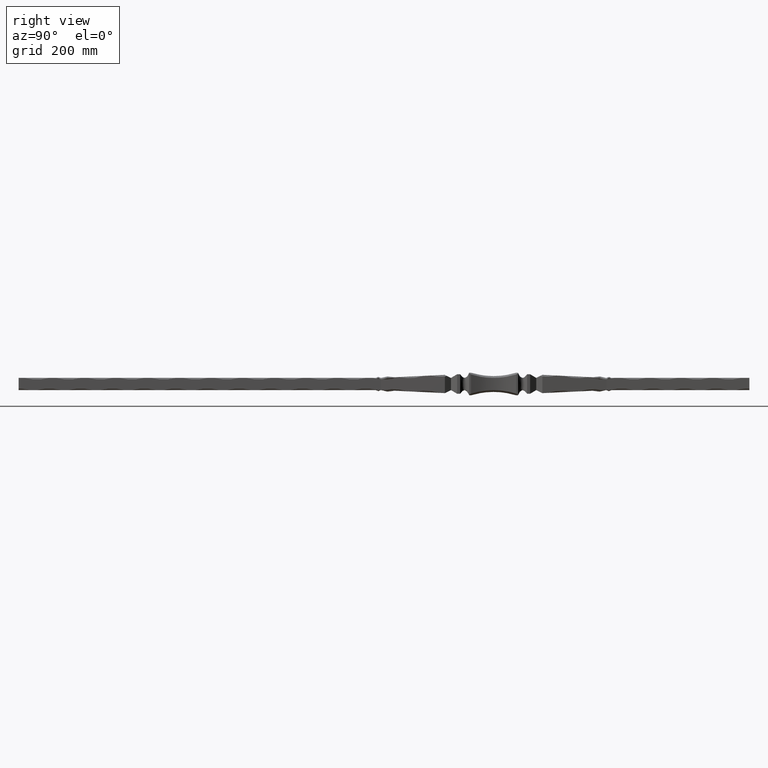
[diagram: clean part render]
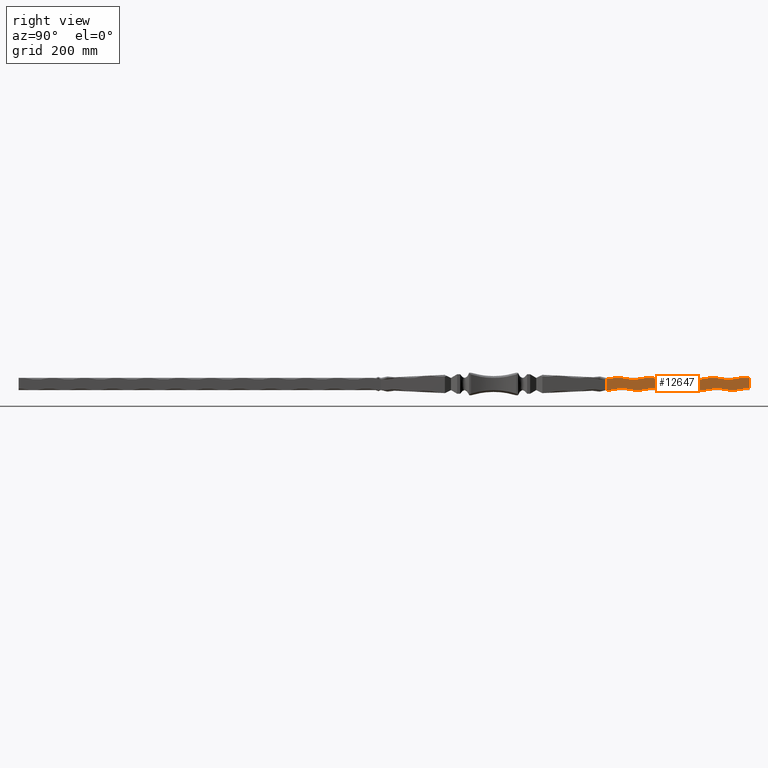
[diagram: same view with one face highlighted and labeled with its STEP entity id]
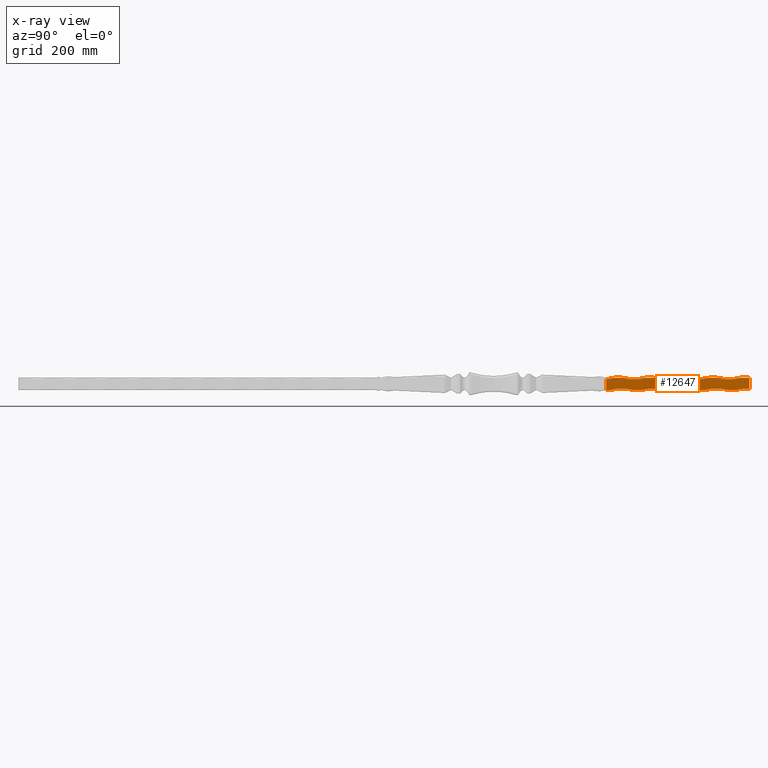
[diagram: x-ray of the same camera — body ghosted, the highlighted face saturated]
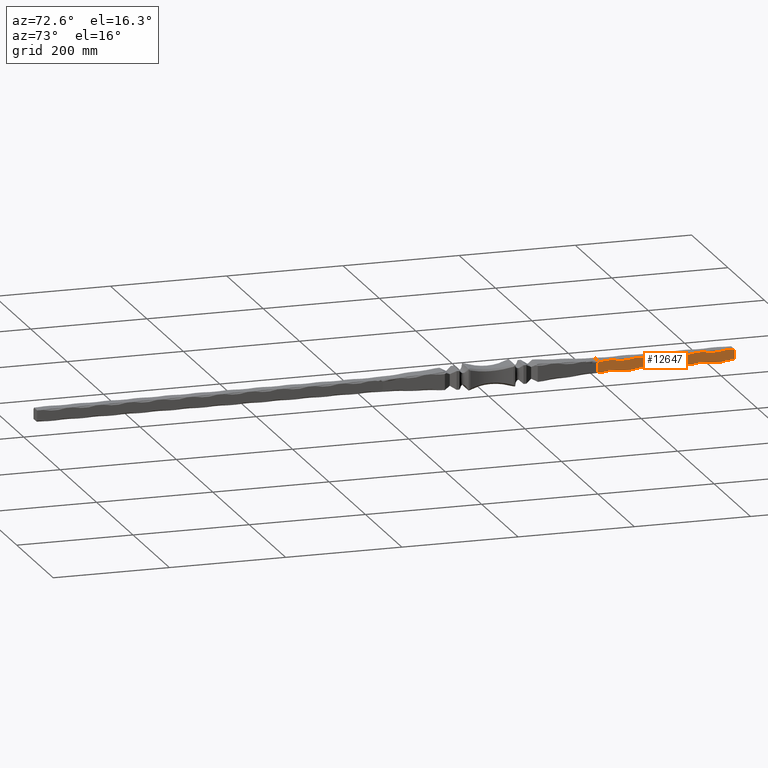
[diagram: same view with one face highlighted and labeled with its STEP entity id]
A machine part, right view. The second image highlights one B-rep face of the part: STEP entity #12647.
The next image is the same camera in x-ray: the body ghosted, the highlighted face saturated — about 0% of this face is hidden behind the body in this view.
A second angle (auxiliary view) of the same face is appended — the face is thin or edge-on in the first view.
In plain terms, the highlighted planar face has unit normal (-1, 0, 0).
Its self-contained STEP definition (entity closure, byte-faithful):
#166 = CARTESIAN_POINT ( 'NONE',  ( 10.00000000000027889, 282.0000000000000000, 88.74999999999927525 ) ) ;
#328 = VERTEX_POINT ( 'NONE', #6523 ) ;
#378 = ORIENTED_EDGE ( 'NONE', *, *, #986, .F. ) ;
#389 = LINE ( 'NONE', #2151, #588 ) ;
#550 = CARTESIAN_POINT ( 'NONE',  ( 10.00000000000024336, 354.0000000000000568, 9.999999999999221956 ) ) ;
#588 = VECTOR ( 'NONE', #8401, 1000.000000000000000 ) ;
#679 = AXIS2_PLACEMENT_3D ( 'NONE', #6060, #14835, #8616 ) ;
#804 = VECTOR ( 'NONE', #13164, 1000.000000000000000 ) ;
#864 = EDGE_CURVE ( 'NONE', #4898, #14855, #389, .T. ) ;
#958 = LINE ( 'NONE', #13800, #11564 ) ;
#981 = CIRCLE ( 'NONE', #10116, 81.25000000000014211 ) ;
#986 = EDGE_CURVE ( 'NONE', #3623, #9154, #958, .T. ) ;
#1055 = VECTOR ( 'NONE', #6539, 1000.000000000000000 ) ;
#1118 = CARTESIAN_POINT ( 'NONE',  ( 10.00000000000000178, 868.2842712474619020, 10.00000000000000355 ) ) ;
#1139 = LINE ( 'NONE', #5008, #5456 ) ;
#1310 = EDGE_CURVE ( 'NONE', #6690, #12033, #10575, .T. ) ;
#1437 = DIRECTION ( 'NONE',  ( -0.000000000000000000, -1.000000000000000000, -0.000000000000000000 ) ) ;
#1635 = DIRECTION ( 'NONE',  ( 0.000000000000000000, 0.000000000000000000, 1.000000000000000000 ) ) ;
#1800 = ORIENTED_EDGE ( 'NONE', *, *, #14357, .T. ) ;
#1819 = CARTESIAN_POINT ( 'NONE',  ( 10.00000000000021139, 406.0000000000000000, 9.999999999999319655 ) ) ;
#1971 = ORIENTED_EDGE ( 'NONE', *, *, #8077, .T. ) ;
#1988 = ORIENTED_EDGE ( 'NONE', *, *, #13579, .T. ) ;
#2125 = CARTESIAN_POINT ( 'NONE',  ( 10.00000000000000178, 397.9999999999999432, -10.00000000000071765 ) ) ;
#2151 = CARTESIAN_POINT ( 'NONE',  ( 10.00000000000000178, 868.2842712474619020, -9.999999999999996447 ) ) ;
#2169 = DIRECTION ( 'NONE',  ( -1.000000000000000000, 0.000000000000000000, 0.000000000000000000 ) ) ;
#2402 = AXIS2_PLACEMENT_3D ( 'NONE', #14638, #12239, #14800 ) ;
#2419 = VERTEX_POINT ( 'NONE', #10529 ) ;
#2672 = AXIS2_PLACEMENT_3D ( 'NONE', #7772, #7884, #1635 ) ;
#2724 = AXIS2_PLACEMENT_3D ( 'NONE', #3484, #12290, #7181 ) ;
#2862 = DIRECTION ( 'NONE',  ( -0.000000000000000000, -1.000000000000000000, -0.000000000000000000 ) ) ;
#3006 = ORIENTED_EDGE ( 'NONE', *, *, #3137, .F. ) ;
#3137 = EDGE_CURVE ( 'NONE', #13549, #14918, #4293, .T. ) ;
#3359 = CARTESIAN_POINT ( 'NONE',  ( 10.00000000000000178, 185.0000000000000000, -9.999999999999996447 ) ) ;
#3428 = EDGE_CURVE ( 'NONE', #328, #14985, #13679, .T. ) ;
#3484 = CARTESIAN_POINT ( 'NONE',  ( 10.00000000000000178, 314.0000000000000000, -88.75000000000110845 ) ) ;
#3492 = ORIENTED_EDGE ( 'NONE', *, *, #11234, .T. ) ;
#3544 = CARTESIAN_POINT ( 'NONE',  ( 10.00000000000030909, 229.9999999999999716, 88.74999999999917577 ) ) ;
#3612 = DIRECTION ( 'NONE',  ( -1.000000000000000000, 0.000000000000000000, 0.000000000000000000 ) ) ;
#3623 = VERTEX_POINT ( 'NONE', #12695 ) ;
#3628 = DIRECTION ( 'NONE',  ( -1.000000000000000000, 0.000000000000000000, 0.000000000000000000 ) ) ;
#3705 = DIRECTION ( 'NONE',  ( 0.000000000000000000, 0.000000000000000000, 1.000000000000000000 ) ) ;
#3729 = CARTESIAN_POINT ( 'NONE',  ( 10.00000000000000178, 868.2842712474619020, -9.999999999999996447 ) ) ;
#3932 = DIRECTION ( 'NONE',  ( 0.000000000000000000, 0.000000000000000000, 1.000000000000000000 ) ) ;
#4042 = CIRCLE ( 'NONE', #2724, 81.25000000000014211 ) ;
#4080 = CARTESIAN_POINT ( 'NONE',  ( 10.00000000000027178, 302.0000000000000568, 9.999999999999124256 ) ) ;
#4293 = LINE ( 'NONE', #10595, #15259 ) ;
#4351 = CARTESIAN_POINT ( 'NONE',  ( 10.00000000000000178, 868.2842712474619020, -9.999999999999996447 ) ) ;
#4420 = ORIENTED_EDGE ( 'NONE', *, *, #10755, .T. ) ;
#4553 = CIRCLE ( 'NONE', #7818, 81.25000000000014211 ) ;
#4558 = CARTESIAN_POINT ( 'NONE',  ( 10.00000000000000178, 366.0000000000000000, -88.75000000000098055 ) ) ;
#4610 = VERTEX_POINT ( 'NONE', #550 ) ;
#4772 = ORIENTED_EDGE ( 'NONE', *, *, #15142, .T. ) ;
#4887 = ORIENTED_EDGE ( 'NONE', *, *, #11820, .T. ) ;
#4898 = VERTEX_POINT ( 'NONE', #15782 ) ;
#5008 = CARTESIAN_POINT ( 'NONE',  ( 10.00000000000000178, 868.2842712474619020, 10.00000000000000355 ) ) ;
#5053 = AXIS2_PLACEMENT_3D ( 'NONE', #9467, #5695, #11953 ) ;
#5131 = CARTESIAN_POINT ( 'NONE',  ( 10.00000000000030909, 209.9999999999960778, 10.00000000000000888 ) ) ;
#5231 = CIRCLE ( 'NONE', #2402, 81.25000000000015632 ) ;
#5456 = VECTOR ( 'NONE', #1437, 1000.000000000000000 ) ;
#5509 = VERTEX_POINT ( 'NONE', #5131 ) ;
#5695 = DIRECTION ( 'NONE',  ( -1.000000000000000000, 0.000000000000000000, 0.000000000000000000 ) ) ;
#5786 = VERTEX_POINT ( 'NONE', #9238 ) ;
#5887 = LINE ( 'NONE', #8210, #804 ) ;
#6060 = CARTESIAN_POINT ( 'NONE',  ( 10.00000000000034106, 178.0000000000000568, 88.74999999999907629 ) ) ;
#6166 = ORIENTED_EDGE ( 'NONE', *, *, #3428, .T. ) ;
#6189 = DIRECTION ( 'NONE',  ( -1.000000000000000000, 0.000000000000000000, 0.000000000000000000 ) ) ;
#6328 = AXIS2_PLACEMENT_3D ( 'NONE', #8445, #8763, #8820 ) ;
#6338 = LINE ( 'NONE', #4351, #14963 ) ;
#6371 = ORIENTED_EDGE ( 'NONE', *, *, #13606, .T. ) ;
#6523 = CARTESIAN_POINT ( 'NONE',  ( 10.00000000000000178, 420.0000000000000000, 9.518929705575141398 ) ) ;
#6539 = DIRECTION ( 'NONE',  ( 0.000000000000000000, 0.000000000000000000, -1.000000000000000000 ) ) ;
#6594 = AXIS2_PLACEMENT_3D ( 'NONE', #3544, #6189, #3705 ) ;
#6690 = VERTEX_POINT ( 'NONE', #2125 ) ;
#6748 = CARTESIAN_POINT ( 'NONE',  ( 10.00000000000000178, 229.9999999999999716, -10.00000000000119904 ) ) ;
#6763 = ORIENTED_EDGE ( 'NONE', *, *, #1310, .T. ) ;
#6867 = DIRECTION ( 'NONE',  ( 0.000000000000000000, 0.000000000000000000, 1.000000000000000000 ) ) ;
#6919 = VERTEX_POINT ( 'NONE', #15633 ) ;
#6964 = CARTESIAN_POINT ( 'NONE',  ( 10.00000000000000178, 420.0000000000000000, -7.524619114467156145 ) ) ;
#7181 = DIRECTION ( 'NONE',  ( 0.000000000000000000, 0.000000000000000000, 1.000000000000000000 ) ) ;
#7671 = EDGE_CURVE ( 'NONE', #328, #12033, #13203, .T. ) ;
#7772 = CARTESIAN_POINT ( 'NONE',  ( 10.00000000000000178, 418.0000000000000000, -88.75000000000085265 ) ) ;
#7818 = AXIS2_PLACEMENT_3D ( 'NONE', #15747, #10796, #8292 ) ;
#7884 = DIRECTION ( 'NONE',  ( -1.000000000000000000, 0.000000000000000000, 0.000000000000000000 ) ) ;
#7952 = CARTESIAN_POINT ( 'NONE',  ( 10.00000000000000178, 209.9999999999999716, -88.75000000000133582 ) ) ;
#8031 = DIRECTION ( 'NONE',  ( -0.000000000000000000, -1.000000000000000000, -0.000000000000000000 ) ) ;
#8077 = EDGE_CURVE ( 'NONE', #4610, #12845, #15358, .T. ) ;
#8136 = VERTEX_POINT ( 'NONE', #8260 ) ;
#8210 = CARTESIAN_POINT ( 'NONE',  ( 10.00000000000000178, 868.2842712474619020, 10.00000000000000355 ) ) ;
#8260 = CARTESIAN_POINT ( 'NONE',  ( 10.00000000000030198, 250.0000000000000000, 9.999999999999026556 ) ) ;
#8292 = DIRECTION ( 'NONE',  ( 0.000000000000000000, 0.000000000000000000, 1.000000000000000000 ) ) ;
#8325 = ORIENTED_EDGE ( 'NONE', *, *, #15422, .T. ) ;
#8329 = DIRECTION ( 'NONE',  ( -1.000000000000000000, 0.000000000000000000, 0.000000000000000000 ) ) ;
#8339 = CARTESIAN_POINT ( 'NONE',  ( 10.00000000000000178, 282.0000000000000000, -10.00000000000108002 ) ) ;
#8401 = DIRECTION ( 'NONE',  ( -0.000000000000000000, -1.000000000000000000, -0.000000000000000000 ) ) ;
#8445 = CARTESIAN_POINT ( 'NONE',  ( 10.00000000000019007, 438.0000000000000000, 88.74999999999955946 ) ) ;
#8475 = ORIENTED_EDGE ( 'NONE', *, *, #7671, .F. ) ;
#8552 = EDGE_CURVE ( 'NONE', #6690, #6919, #6338, .T. ) ;
#8616 = DIRECTION ( 'NONE',  ( 0.000000000000000000, 0.000000000000000000, 1.000000000000000000 ) ) ;
#8698 = EDGE_CURVE ( 'NONE', #3623, #14855, #4553, .T. ) ;
#8763 = DIRECTION ( 'NONE',  ( -1.000000000000000000, 0.000000000000000000, 0.000000000000000000 ) ) ;
#8820 = DIRECTION ( 'NONE',  ( 0.000000000000000000, 0.000000000000000000, 1.000000000000000000 ) ) ;
#8864 = VERTEX_POINT ( 'NONE', #11224 ) ;
#8937 = DIRECTION ( 'NONE',  ( 0.000000000000000000, 0.000000000000000000, 1.000000000000000000 ) ) ;
#8995 = DIRECTION ( 'NONE',  ( -0.000000000000000000, -1.000000000000000000, -0.000000000000000000 ) ) ;
#9115 = ORIENTED_EDGE ( 'NONE', *, *, #11704, .T. ) ;
#9154 = VERTEX_POINT ( 'NONE', #6748 ) ;
#9164 = CARTESIAN_POINT ( 'NONE',  ( 10.00000000000000178, 334.0000000000000000, -10.00000000000095923 ) ) ;
#9238 = CARTESIAN_POINT ( 'NONE',  ( 10.00000000000027889, 261.9999999999965326, 10.00000000000000888 ) ) ;
#9467 = CARTESIAN_POINT ( 'NONE',  ( 10.00000000000025047, 334.0000000000000000, 88.74999999999937472 ) ) ;
#9733 = DIRECTION ( 'NONE',  ( -0.000000000000000000, -1.000000000000000000, -0.000000000000000000 ) ) ;
#9849 = CARTESIAN_POINT ( 'NONE',  ( 10.00000000000000178, 868.2842712474619020, 10.00000000000000355 ) ) ;
#9944 = VECTOR ( 'NONE', #15410, 1000.000000000000000 ) ;
#9960 = LINE ( 'NONE', #15454, #14050 ) ;
#10074 = CARTESIAN_POINT ( 'NONE',  ( 10.00000000000033396, 198.0000000000000568, 9.999999999998928857 ) ) ;
#10116 = AXIS2_PLACEMENT_3D ( 'NONE', #4558, #8329, #6867 ) ;
#10407 = ORIENTED_EDGE ( 'NONE', *, *, #8552, .F. ) ;
#10465 = CARTESIAN_POINT ( 'NONE',  ( 10.00000000000025047, 313.9999999999968736, 10.00000000000000888 ) ) ;
#10529 = CARTESIAN_POINT ( 'NONE',  ( 10.00000000000000178, 185.0000000000000568, 7.802100089006799521 ) ) ;
#10566 = ORIENTED_EDGE ( 'NONE', *, *, #15612, .T. ) ;
#10575 = CIRCLE ( 'NONE', #2672, 81.25000000000014211 ) ;
#10595 = CARTESIAN_POINT ( 'NONE',  ( 10.00000000000000178, 868.2842712474619020, -9.999999999999996447 ) ) ;
#10737 = VECTOR ( 'NONE', #8031, 1000.000000000000000 ) ;
#10755 = EDGE_CURVE ( 'NONE', #14995, #2419, #12196, .T. ) ;
#10796 = DIRECTION ( 'NONE',  ( -1.000000000000000000, 0.000000000000000000, 0.000000000000000000 ) ) ;
#11011 = ORIENTED_EDGE ( 'NONE', *, *, #12737, .T. ) ;
#11120 = LINE ( 'NONE', #3729, #9944 ) ;
#11129 = ORIENTED_EDGE ( 'NONE', *, *, #8698, .T. ) ;
#11224 = CARTESIAN_POINT ( 'NONE',  ( 10.00000000000000888, 346.0000000000000568, -10.00000000000083844 ) ) ;
#11234 = EDGE_CURVE ( 'NONE', #5509, #14995, #5887, .T. ) ;
#11346 = DIRECTION ( 'NONE',  ( -0.000000000000000000, -1.000000000000000000, -0.000000000000000000 ) ) ;
#11428 = CARTESIAN_POINT ( 'NONE',  ( 10.00000000000000178, 185.0000000000000000, -9.999999999999996447 ) ) ;
#11463 = VERTEX_POINT ( 'NONE', #4080 ) ;
#11564 = VECTOR ( 'NONE', #11346, 1000.000000000000000 ) ;
#11570 = VERTEX_POINT ( 'NONE', #9164 ) ;
#11702 = CIRCLE ( 'NONE', #6594, 81.25000000000014211 ) ;
#11704 = EDGE_CURVE ( 'NONE', #8864, #6919, #981, .T. ) ;
#11820 = EDGE_CURVE ( 'NONE', #11463, #5786, #15671, .T. ) ;
#11843 = EDGE_LOOP ( 'NONE', ( #3492, #4420, #8325, #3006, #6371, #378, #11129, #13822, #15678, #13267, #9115, #10407, #6763, #8475, #6166, #10566, #1800, #4772, #1971, #11011, #4887, #1988, #12208 ) ) ;
#11953 = DIRECTION ( 'NONE',  ( 0.000000000000000000, 0.000000000000000000, 1.000000000000000000 ) ) ;
#12033 = VERTEX_POINT ( 'NONE', #6964 ) ;
#12168 = FACE_OUTER_BOUND ( 'NONE', #11843, .T. ) ;
#12196 = CIRCLE ( 'NONE', #679, 81.25000000000015632 ) ;
#12208 = ORIENTED_EDGE ( 'NONE', *, *, #15286, .T. ) ;
#12239 = DIRECTION ( 'NONE',  ( -1.000000000000000000, 0.000000000000000000, 0.000000000000000000 ) ) ;
#12290 = DIRECTION ( 'NONE',  ( -1.000000000000000000, 0.000000000000000000, 0.000000000000000000 ) ) ;
#12346 = LINE ( 'NONE', #9849, #16028 ) ;
#12477 = VERTEX_POINT ( 'NONE', #1819 ) ;
#12563 = CARTESIAN_POINT ( 'NONE',  ( 10.00000000000000888, 189.9999999999999716, -10.00000000000119904 ) ) ;
#12619 = DIRECTION ( 'NONE',  ( -0.000000000000000000, -0.000000000000000000, -1.000000000000000000 ) ) ;
#12647 = ADVANCED_FACE ( 'NONE', ( #12168 ), #14886, .F. ) ;
#12684 = VECTOR ( 'NONE', #12619, 1000.000000000000000 ) ;
#12695 = CARTESIAN_POINT ( 'NONE',  ( 10.00000000000000888, 242.0000000000000284, -10.00000000000108002 ) ) ;
#12697 = CARTESIAN_POINT ( 'NONE',  ( 10.00000000000021849, 365.9999999999972715, 10.00000000000000888 ) ) ;
#12737 = EDGE_CURVE ( 'NONE', #12845, #11463, #1139, .T. ) ;
#12845 = VERTEX_POINT ( 'NONE', #10465 ) ;
#13045 = CARTESIAN_POINT ( 'NONE',  ( 10.00000000000000178, 868.2842712474619020, 10.00000000000000355 ) ) ;
#13164 = DIRECTION ( 'NONE',  ( -0.000000000000000000, -1.000000000000000000, -0.000000000000000000 ) ) ;
#13199 = DIRECTION ( 'NONE',  ( -0.000000000000000000, -1.000000000000000000, -0.000000000000000000 ) ) ;
#13203 = LINE ( 'NONE', #14215, #1055 ) ;
#13267 = ORIENTED_EDGE ( 'NONE', *, *, #16021, .F. ) ;
#13469 = LINE ( 'NONE', #13045, #10737 ) ;
#13549 = VERTEX_POINT ( 'NONE', #12563 ) ;
#13579 = EDGE_CURVE ( 'NONE', #5786, #8136, #12346, .T. ) ;
#13606 = EDGE_CURVE ( 'NONE', #13549, #9154, #14676, .T. ) ;
#13608 = VERTEX_POINT ( 'NONE', #12697 ) ;
#13679 = CIRCLE ( 'NONE', #6328, 81.25000000000014211 ) ;
#13696 = DIRECTION ( 'NONE',  ( 0.000000000000000000, 0.000000000000000000, 1.000000000000000000 ) ) ;
#13800 = CARTESIAN_POINT ( 'NONE',  ( 10.00000000000000178, 868.2842712474619020, -9.999999999999996447 ) ) ;
#13822 = ORIENTED_EDGE ( 'NONE', *, *, #864, .F. ) ;
#13952 = CARTESIAN_POINT ( 'NONE',  ( 10.00000000000018296, 418.0000000000000000, 9.999999999999417355 ) ) ;
#14050 = VECTOR ( 'NONE', #8995, 1000.000000000000000 ) ;
#14215 = CARTESIAN_POINT ( 'NONE',  ( 10.00000000000000178, 420.0000000000000000, 10.00000000000000355 ) ) ;
#14357 = EDGE_CURVE ( 'NONE', #12477, #13608, #5231, .T. ) ;
#14399 = EDGE_CURVE ( 'NONE', #4898, #11570, #4042, .T. ) ;
#14638 = CARTESIAN_POINT ( 'NONE',  ( 10.00000000000021849, 386.0000000000000000, 88.74999999999947420 ) ) ;
#14676 = CIRCLE ( 'NONE', #15623, 81.25000000000014211 ) ;
#14800 = DIRECTION ( 'NONE',  ( 0.000000000000000000, 0.000000000000000000, 1.000000000000000000 ) ) ;
#14835 = DIRECTION ( 'NONE',  ( -1.000000000000000000, 0.000000000000000000, 0.000000000000000000 ) ) ;
#14855 = VERTEX_POINT ( 'NONE', #8339 ) ;
#14886 = PLANE ( 'NONE',  #15831 ) ;
#14918 = VERTEX_POINT ( 'NONE', #3359 ) ;
#14963 = VECTOR ( 'NONE', #13199, 1000.000000000000000 ) ;
#14985 = VERTEX_POINT ( 'NONE', #13952 ) ;
#14995 = VERTEX_POINT ( 'NONE', #10074 ) ;
#15142 = EDGE_CURVE ( 'NONE', #13608, #4610, #9960, .T. ) ;
#15259 = VECTOR ( 'NONE', #9733, 1000.000000000000000 ) ;
#15286 = EDGE_CURVE ( 'NONE', #8136, #5509, #11702, .T. ) ;
#15358 = CIRCLE ( 'NONE', #5053, 81.25000000000017053 ) ;
#15410 = DIRECTION ( 'NONE',  ( -0.000000000000000000, -1.000000000000000000, -0.000000000000000000 ) ) ;
#15422 = EDGE_CURVE ( 'NONE', #2419, #14918, #15987, .T. ) ;
#15454 = CARTESIAN_POINT ( 'NONE',  ( 10.00000000000000178, 868.2842712474619020, 10.00000000000000355 ) ) ;
#15607 = AXIS2_PLACEMENT_3D ( 'NONE', #166, #3612, #8937 ) ;
#15612 = EDGE_CURVE ( 'NONE', #14985, #12477, #13469, .T. ) ;
#15623 = AXIS2_PLACEMENT_3D ( 'NONE', #7952, #2169, #3932 ) ;
#15633 = CARTESIAN_POINT ( 'NONE',  ( 10.00000000000000178, 386.0000000000000000, -10.00000000000083844 ) ) ;
#15671 = CIRCLE ( 'NONE', #15607, 81.25000000000015632 ) ;
#15678 = ORIENTED_EDGE ( 'NONE', *, *, #14399, .T. ) ;
#15747 = CARTESIAN_POINT ( 'NONE',  ( 10.00000000000000178, 262.0000000000000000, -88.75000000000122213 ) ) ;
#15782 = CARTESIAN_POINT ( 'NONE',  ( 10.00000000000000888, 294.0000000000000568, -10.00000000000095923 ) ) ;
#15831 = AXIS2_PLACEMENT_3D ( 'NONE', #1118, #3628, #13696 ) ;
#15987 = LINE ( 'NONE', #11428, #12684 ) ;
#16021 = EDGE_CURVE ( 'NONE', #8864, #11570, #11120, .T. ) ;
#16028 = VECTOR ( 'NONE', #2862, 1000.000000000000000 ) ;